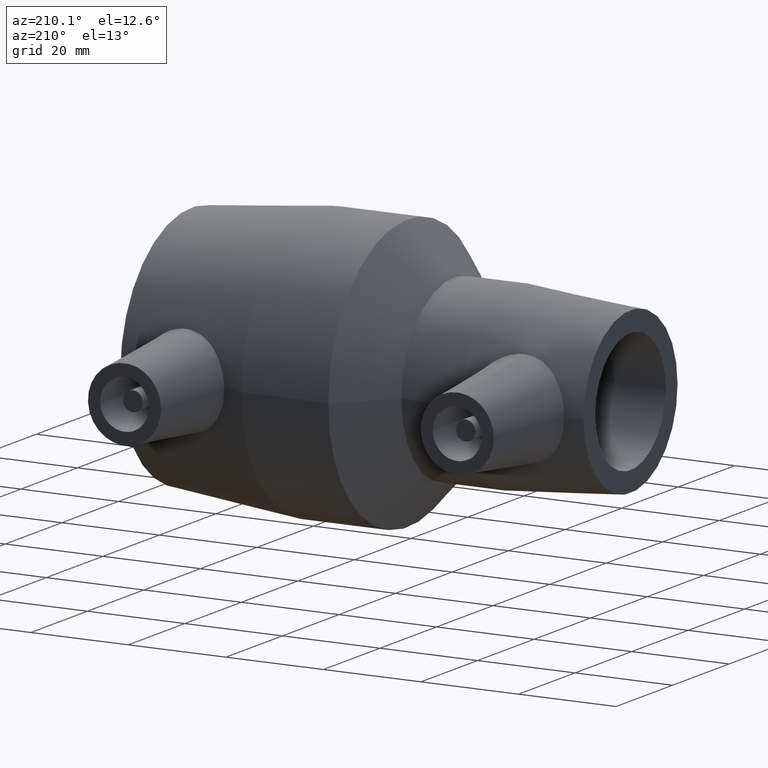
[diagram: clean part render]
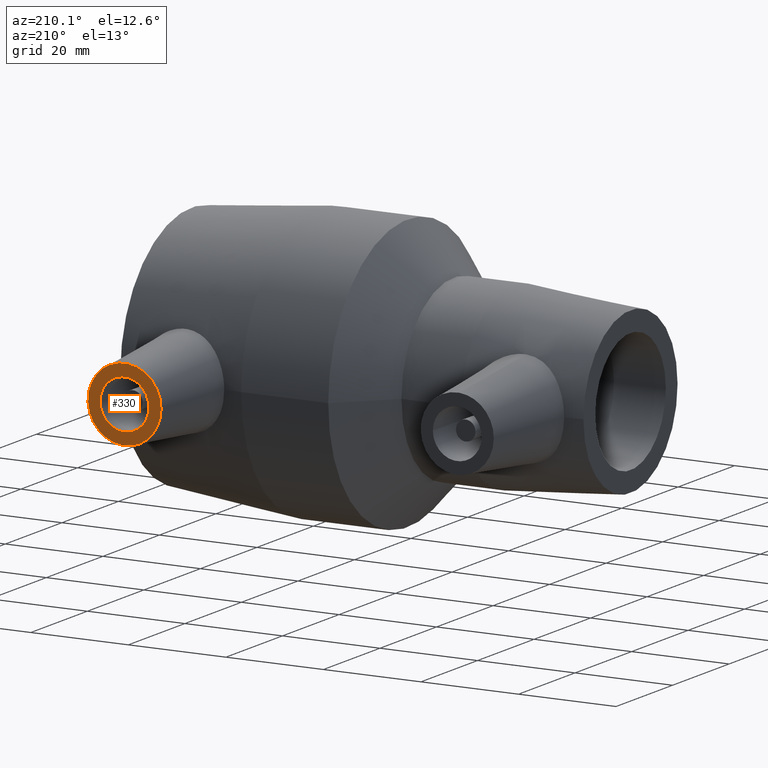
[diagram: same view with one face highlighted and labeled with its STEP entity id]
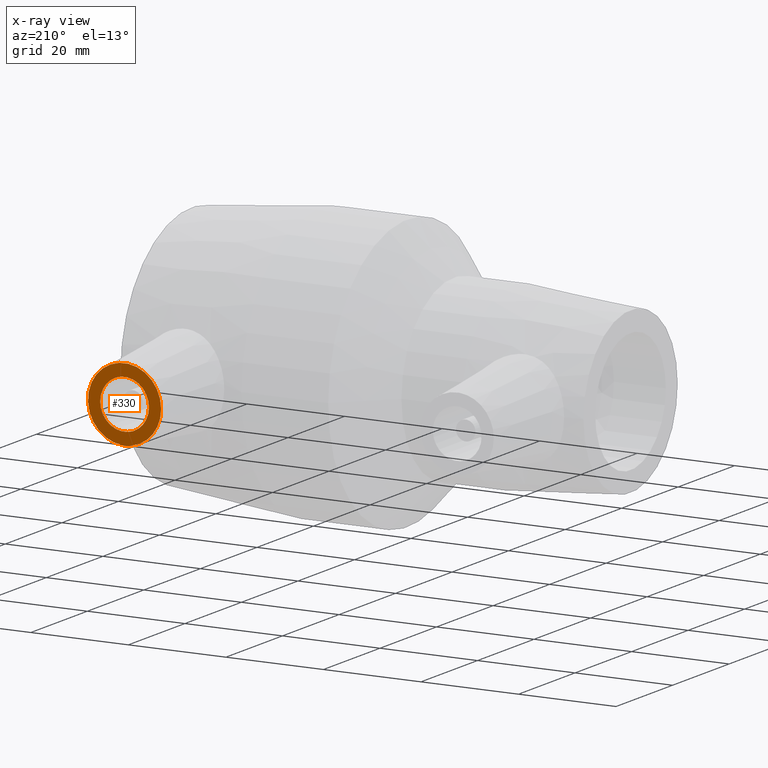
[diagram: x-ray of the same camera — body ghosted, the highlighted face saturated]
A machine part, auxiliary view. The second image highlights one B-rep face of the part: STEP entity #330.
The next image is the same camera in x-ray: the body ghosted, the highlighted face saturated — about 0% of this face is hidden behind the body in this view.
In plain terms, the highlighted planar face has unit normal (0, 1, 0).
Its self-contained STEP definition (entity closure, byte-faithful):
#28=FACE_BOUND('',#107,.T.);
#72=FACE_OUTER_BOUND('',#106,.T.);
#106=EDGE_LOOP('',(#259));
#107=EDGE_LOOP('',(#260));
#164=CIRCLE('',#366,5.);
#165=CIRCLE('',#369,7.5);
#193=VERTEX_POINT('',#553);
#194=VERTEX_POINT('',#557);
#224=EDGE_CURVE('',#193,#193,#164,.T.);
#225=EDGE_CURVE('',#194,#194,#165,.T.);
#259=ORIENTED_EDGE('',*,*,#225,.F.);
#260=ORIENTED_EDGE('',*,*,#224,.T.);
#316=PLANE('',#368);
#330=ADVANCED_FACE('',(#72,#28),#316,.T.);
#366=AXIS2_PLACEMENT_3D('',#554,#436,#437);
#368=AXIS2_PLACEMENT_3D('',#556,#440,#441);
#369=AXIS2_PLACEMENT_3D('',#558,#442,#443);
#436=DIRECTION('center_axis',(0.,-1.,0.));
#437=DIRECTION('ref_axis',(1.,0.,0.));
#440=DIRECTION('center_axis',(0.,1.,0.));
#441=DIRECTION('ref_axis',(0.,0.,1.));
#442=DIRECTION('center_axis',(0.,-1.,0.));
#443=DIRECTION('ref_axis',(1.,0.,0.));
#553=CARTESIAN_POINT('',(26.5,47.,6.12323399573677E-16));
#554=CARTESIAN_POINT('Origin',(31.5,47.,0.));
#556=CARTESIAN_POINT('Origin',(31.5,47.,1.2335811384724E-16));
#557=CARTESIAN_POINT('',(24.,47.,9.18485099360515E-16));
#558=CARTESIAN_POINT('Origin',(31.5,47.,0.));